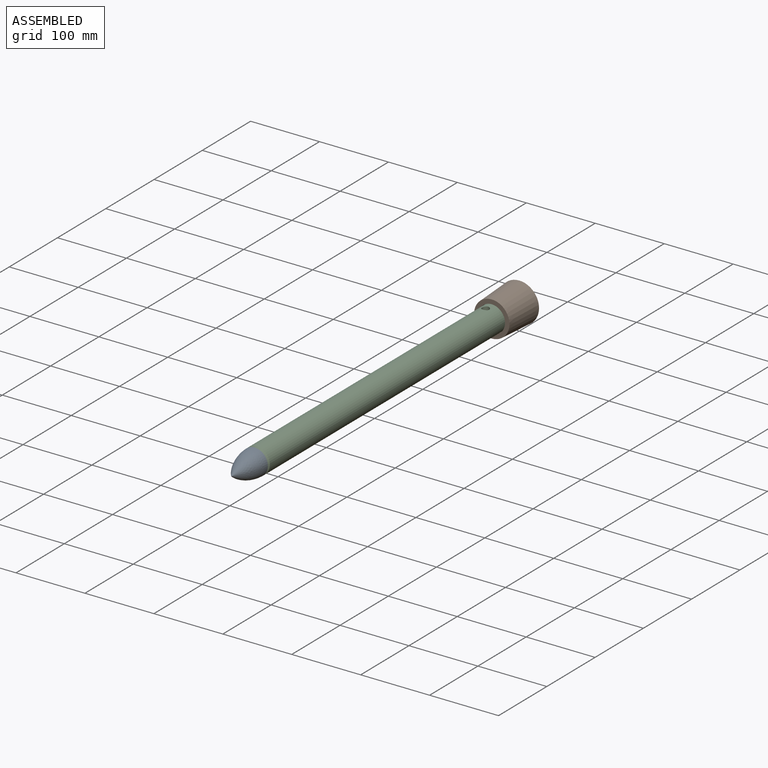
[diagram: assembled view]
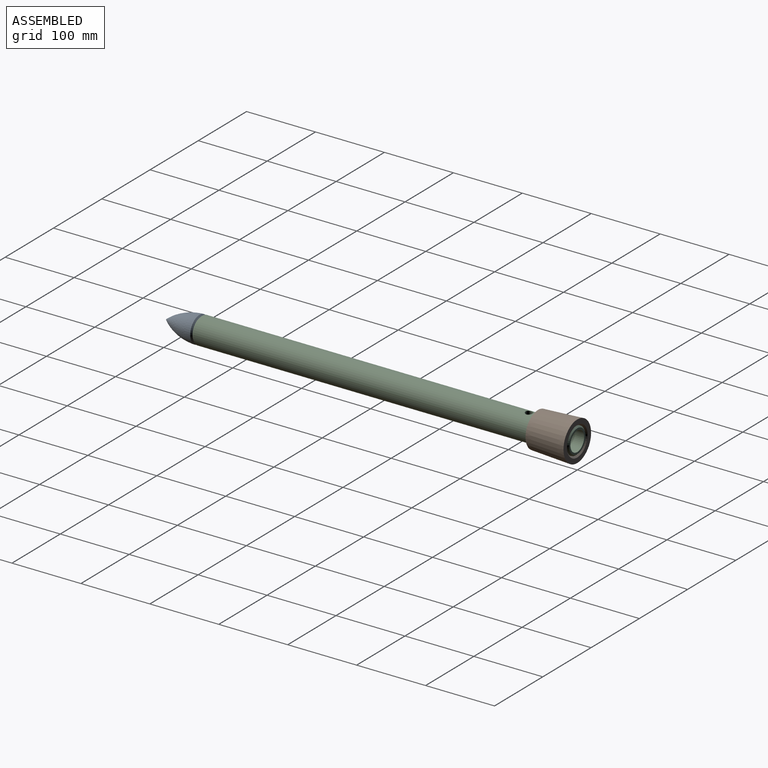
[diagram: assembled view, second angle]
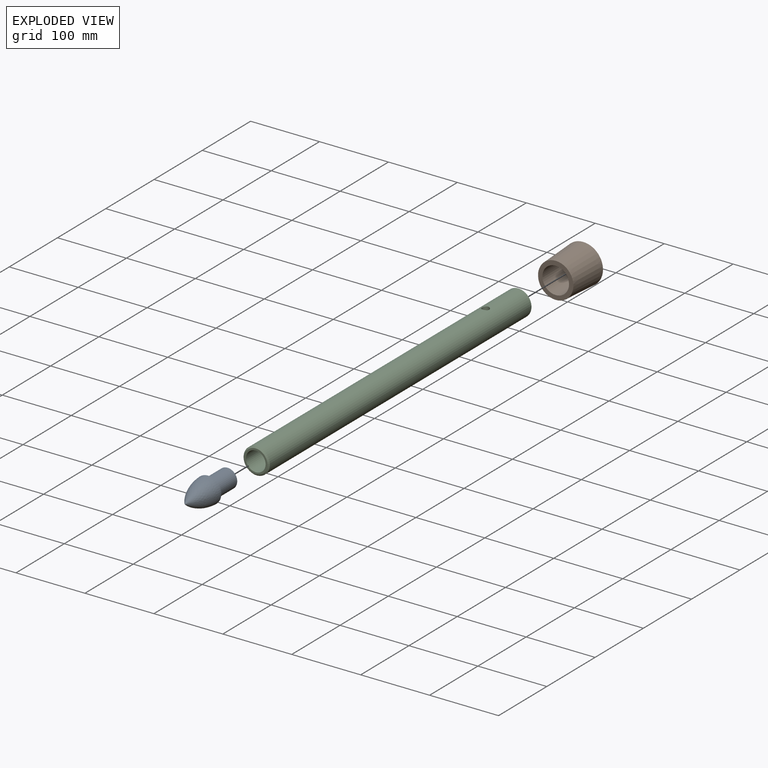
[diagram: exploded view]
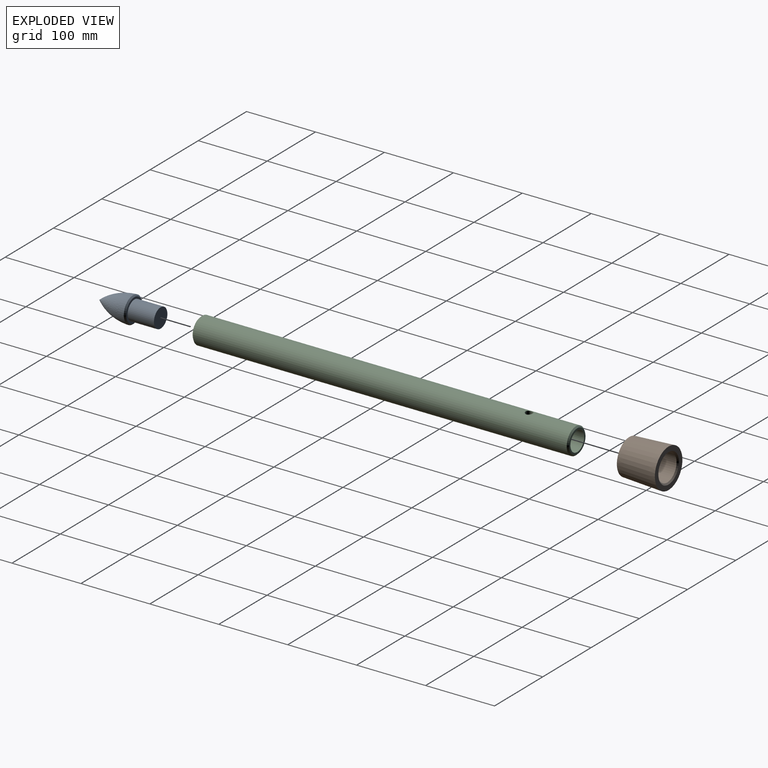
[diagram: exploded view, second angle]
ASSEMBLY  parts=3 mates=4
PART A: 5 faces, bbox 88.9x38x38 mm
  f0: plane 27.94x27.94mm, normal (-1,0,0), area 613.1mm2, adj f3
  f1: revolved ~48.71x38.04mm, area 4135.2mm2, adj f4
  f2: plane 33.98x33.98mm, normal (-1,0,0), area 293.8mm2, adj f3,f4
  f3: cylinder r=13.97mm len=38.1mm, axis (-1,0,0), area 3344.3mm2, adj f0,f2
  f4: cone r=16.99mm half-angle=44.2deg, axis (1,0,0), area 329.5mm2, adj f1,f2
PART B: 5 faces, bbox 57.2x57.2x57.2 mm
  f0: plane 57.15x57.15mm, normal (-1,0,0), area 1135.1mm2, adj f2,f4
  f1: plane 51.31x51.31mm, normal (1,0,0), area 896.9mm2, adj f2,f3
  f2: cone r=28.57mm half-angle=2.9deg, axis (-1,0,0), area 9749.1mm2, adj f0,f1
  f3: cylinder r=19.3mm len=55.12mm, axis (-1,0,0), area 6685.3mm2, adj f1,f4
  f4: cone r=21.34mm half-angle=45deg, axis (-1,0,0), area 366.9mm2, adj f0,f3
PART C: 8 faces, bbox 38.1x546.1x38.1 mm
  f0: cylinder r=14.27mm len=546.1mm, axis (0,1,0), area 48810.3mm2, adj f2,f3,f6,f7
  f1: cylinder r=19.05mm len=542.04mm, axis (0,1,0), area 64710.3mm2, adj f4,f5,f6,f7
  f2: plane 34.04x34.04mm, normal (0,-1,0), area 269.7mm2, adj f0,f5
  f3: plane 34.04x34.04mm, normal (0,1,0), area 269.7mm2, adj f0,f4
  f4: cone r=19.05mm half-angle=45deg, axis (0,-1,0), area 325.6mm2, adj f1,f3
  f5: cone r=17.02mm half-angle=45deg, axis (0,1,0), area 325.6mm2, adj f1,f2
  f6: cylinder r=5.16mm len=10.31mm, axis (0,0,1), area 158.7mm2, adj f0,f1
  f7: cylinder r=5.16mm len=10.31mm, axis (0,0,1), area 158.8mm2, adj f0,f1
PLACE A rot(axis=(0.58,-0.58,-0.58),120deg) t=(0,-508,0)mm
PLACE B rot(axis=(0.71,-0.71,0),180deg) t=(0,0,0)mm
PLACE C at identity fixed
MATE planar B.f3 <-> C.f1  axis (0,1,0) through (0,0,0)mm
MATE cylindrical C.f0 <-> A.f3  axis (0,1,0) through (0,-273.05,0)mm
MATE planar A.f4 <-> C.f1  axis (0,1,0) through (0,-546.1,0)mm
MATE cylindrical C.f1 <-> B.f3  axis (0,1,0) through (0,-273.05,0)mm
